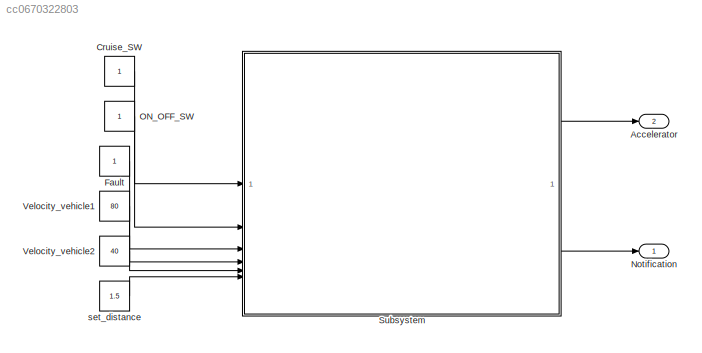
MODEL slx_cc0670322803
KIND model
CONFIG AbsTol = auto
CONFIG EnableMultiTasking = off
CONFIG FixedStep = auto
CONFIG MaxStep = auto
CONFIG MinStep = auto
CONFIG RelTol = 1e-3
CONFIG SampleTimeConstraint = Unconstrained
CONFIG SolverName = VariableStepAuto
CONFIG StartTime = 0.0
CONFIG StopTime = inf
BLOCK [Outport] Accelerator
  Port = 2
BLOCK [Constant] Cruise_SW
BLOCK [Constant] Fault
BLOCK [Outport] Notification
BLOCK [Constant] ON_OFF_SW
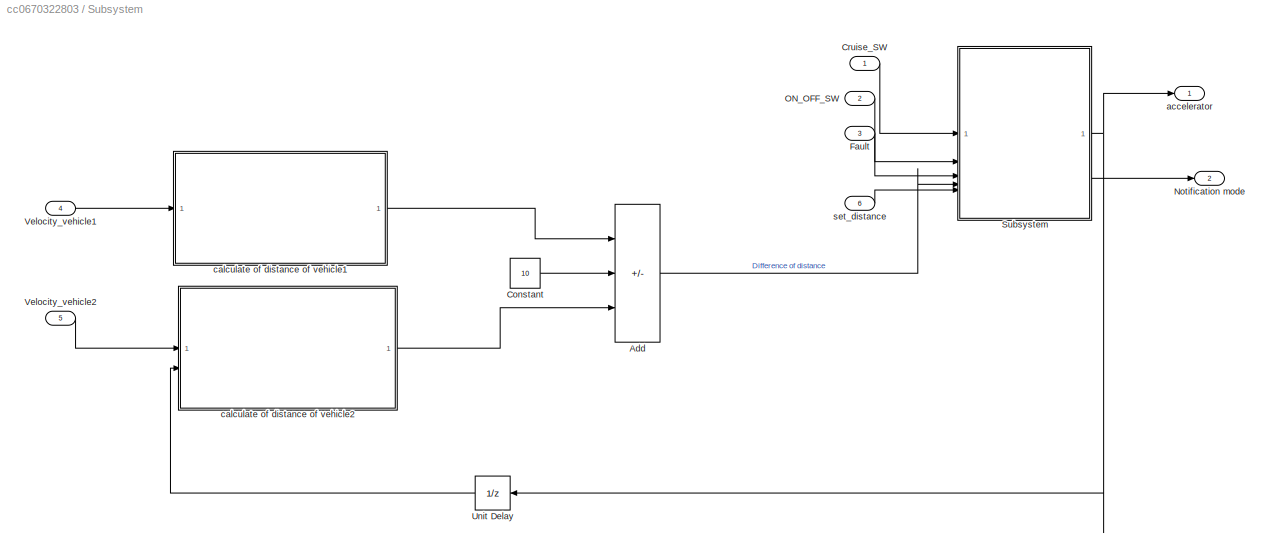
BLOCK [SubSystem] Subsystem
BLOCK [Sum] Subsystem/Add
  IconShape = rectangular
  Inputs = ++-
BLOCK [Constant] Subsystem/Constant
  Value = 10
BLOCK [Inport] Subsystem/Cruise_SW
BLOCK [Inport] Subsystem/Fault
  Port = 3
BLOCK [Outport] Subsystem/Notification mode
  Port = 2
BLOCK [Inport] Subsystem/ON_OFF_SW
  Port = 2
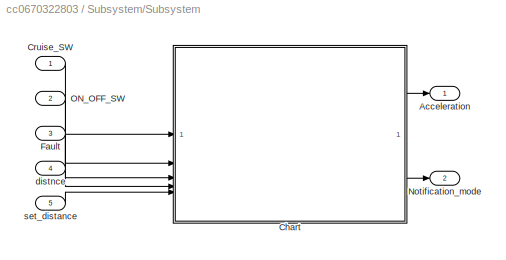
BLOCK [SubSystem] Subsystem/Subsystem
BLOCK [Outport] Subsystem/Subsystem/Acceleration
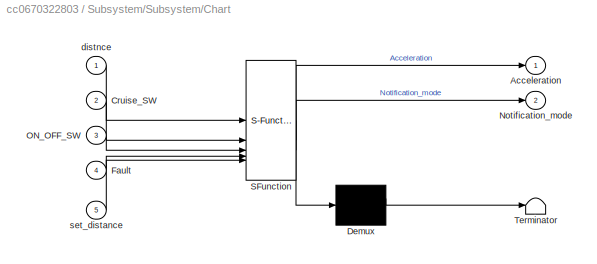
BLOCK [SubSystem] Subsystem/Subsystem/Chart
  ErrorFcn = Stateflow.Translate.translate
  PermitHierarchicalResolution = ExplicitOnly
  PortSchema = {"entries":[{"content":{"sides":[{"content":{"connectorIds":["In2","In3","In4","In1","In5"]},"type":"ConnectorPlacement.EquallySpacedRectSide","uuid":"4906a01a-7974-4c8e-ad8c-3bba2fae35ce"},{"content":{"connectorIds":["Out1","Out2"],"side":"RIGHT"},"type":"ConnectorPlacement.EquallySpacedRectSide","uuid":"298045ce-a80b-4d65-b495-fb259af7d9cc"},{"content":{"connectorIds":[],"side":"TOP"},"type":"Co...<+415ch>
  SFBlockType = Chart
  TreatAsAtomicUnit = on
BLOCK [Demux] Subsystem/Subsystem/Chart/ Demux 
  Outputs = 1
BLOCK [S-Function] Subsystem/Subsystem/Chart/ SFunction 
  EnableBusSupport = on
  FunctionName = sf_sfun
  PortCounts = [5 3]
  SFcnIsStateOwnerBlock = off
  SFunctionDeploymentMode = off
  Tag = Stateflow S-Function 3
BLOCK [Terminator] Subsystem/Subsystem/Chart/ Terminator 
BLOCK [Outport] Subsystem/Subsystem/Chart/Acceleration
BLOCK [Inport] Subsystem/Subsystem/Chart/Cruise_SW
  Port = 2
BLOCK [Inport] Subsystem/Subsystem/Chart/Fault
  Port = 4
BLOCK [Outport] Subsystem/Subsystem/Chart/Notification_mode
  Port = 2
BLOCK [Inport] Subsystem/Subsystem/Chart/ON_OFF_SW
  Port = 3
BLOCK [Inport] Subsystem/Subsystem/Chart/distnce
BLOCK [Inport] Subsystem/Subsystem/Chart/set_distance
  Port = 5
BLOCK [Inport] Subsystem/Subsystem/Cruise_SW
BLOCK [Inport] Subsystem/Subsystem/Fault
  Port = 3
BLOCK [Outport] Subsystem/Subsystem/Notification_mode
  Port = 2
BLOCK [Inport] Subsystem/Subsystem/ON_OFF_SW
  Port = 2
BLOCK [Inport] Subsystem/Subsystem/distnce
  Port = 4
BLOCK [Inport] Subsystem/Subsystem/set_distance
  Port = 5
BLOCK [UnitDelay] Subsystem/Unit Delay
  HasFrameUpgradeWarning = on
  InitialCondition = 1
  SampleTime = -1
BLOCK [Inport] Subsystem/Velocity_vehicle1
  Port = 4
BLOCK [Inport] Subsystem/Velocity_vehicle2
  Port = 5
BLOCK [Outport] Subsystem/accelerator
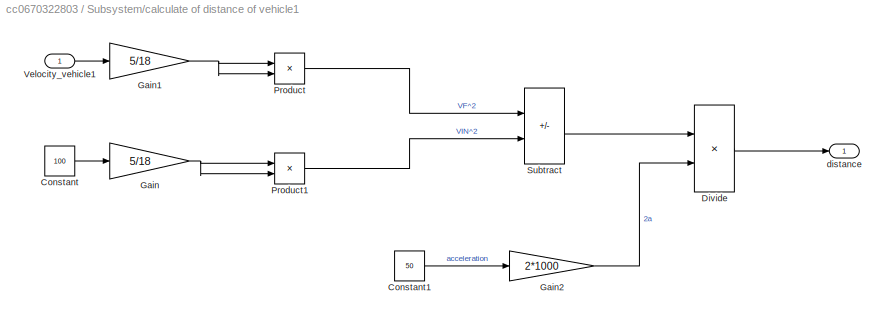
BLOCK [SubSystem] Subsystem/calculate of distance of vehicle1
BLOCK [Constant] Subsystem/calculate of distance of vehicle1/Constant
  Value = 100
BLOCK [Constant] Subsystem/calculate of distance of vehicle1/Constant1
  Value = 50
BLOCK [Product] Subsystem/calculate of distance of vehicle1/Divide
  Inputs = */
BLOCK [Gain] Subsystem/calculate of distance of vehicle1/Gain
  Gain = 5/18
BLOCK [Gain] Subsystem/calculate of distance of vehicle1/Gain1
  Gain = 5/18
BLOCK [Gain] Subsystem/calculate of distance of vehicle1/Gain2
  Gain = 2*1000
BLOCK [Product] Subsystem/calculate of distance of vehicle1/Product
BLOCK [Product] Subsystem/calculate of distance of vehicle1/Product1
BLOCK [Sum] Subsystem/calculate of distance of vehicle1/Subtract
  IconShape = rectangular
  Inputs = +-
BLOCK [Inport] Subsystem/calculate of distance of vehicle1/Velocity_vehicle1
BLOCK [Outport] Subsystem/calculate of distance of vehicle1/distance
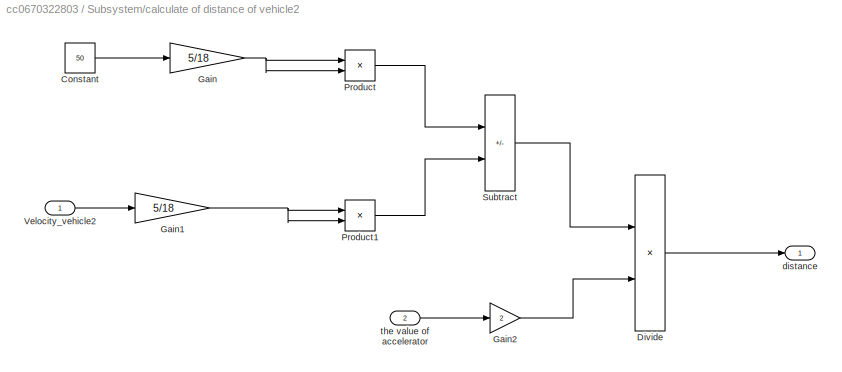
BLOCK [SubSystem] Subsystem/calculate of distance of vehicle2
BLOCK [Constant] Subsystem/calculate of distance of vehicle2/Constant
  Value = 50
BLOCK [Product] Subsystem/calculate of distance of vehicle2/Divide
  Inputs = */
BLOCK [Gain] Subsystem/calculate of distance of vehicle2/Gain
  Gain = 5/18
BLOCK [Gain] Subsystem/calculate of distance of vehicle2/Gain1
  Gain = 5/18
BLOCK [Gain] Subsystem/calculate of distance of vehicle2/Gain2
  Gain = 2
BLOCK [Product] Subsystem/calculate of distance of vehicle2/Product
BLOCK [Product] Subsystem/calculate of distance of vehicle2/Product1
BLOCK [Sum] Subsystem/calculate of distance of vehicle2/Subtract
  IconShape = rectangular
  Inputs = +-
BLOCK [Inport] Subsystem/calculate of distance of vehicle2/Velocity_vehicle2
BLOCK [Outport] Subsystem/calculate of distance of vehicle2/distance
BLOCK [Inport] Subsystem/calculate of distance of vehicle2/the value of accelerator
  Port = 2
BLOCK [Inport] Subsystem/set_distance
  Port = 6
BLOCK [Constant] Velocity_vehicle1
  Value = 80
BLOCK [Constant] Velocity_vehicle2
  Value = 40
BLOCK [Constant] set_distance
  Value = 1.5
LINE Cruise_SW:1 -> Subsystem:1
LINE Fault:1 -> Subsystem:3
LINE ON_OFF_SW:1 -> Subsystem:2
LINE Subsystem/Add:1 -> Subsystem/Subsystem:4
LINE Subsystem/Constant:1 -> Subsystem/Add:2
LINE Subsystem/Cruise_SW:1 -> Subsystem/Subsystem:1
LINE Subsystem/Fault:1 -> Subsystem/Subsystem:3
LINE Subsystem/ON_OFF_SW:1 -> Subsystem/Subsystem:2
LINE Subsystem/Subsystem/Chart:1 -> Subsystem/Subsystem/Acceleration:1
LINE Subsystem/Subsystem/Chart:2 -> Subsystem/Subsystem/Notification_mode:1
LINE Subsystem/Subsystem/Cruise_SW:1 -> Subsystem/Subsystem/Chart:2
LINE Subsystem/Subsystem/Fault:1 -> Subsystem/Subsystem/Chart:4
LINE Subsystem/Subsystem/ON_OFF_SW:1 -> Subsystem/Subsystem/Chart:3
LINE Subsystem/Subsystem/distnce:1 -> Subsystem/Subsystem/Chart:1
LINE Subsystem/Subsystem/set_distance:1 -> Subsystem/Subsystem/Chart:5
NET Subsystem/Subsystem:1 -> Subsystem/Unit Delay:1, Subsystem/accelerator:1
LINE Subsystem/Subsystem:2 -> Subsystem/Notification mode:1
LINE Subsystem/Unit Delay:1 -> Subsystem/calculate of distance of vehicle2:2
LINE Subsystem/Velocity_vehicle1:1 -> Subsystem/calculate of distance of vehicle1:1
LINE Subsystem/Velocity_vehicle2:1 -> Subsystem/calculate of distance of vehicle2:1
LINE Subsystem/calculate of distance of vehicle1/Constant1:1 -> Subsystem/calculate of distance of vehicle1/Gain2:1
LINE Subsystem/calculate of distance of vehicle1/Constant:1 -> Subsystem/calculate of distance of vehicle1/Gain:1
LINE Subsystem/calculate of distance of vehicle1/Divide:1 -> Subsystem/calculate of distance of vehicle1/distance:1
NET Subsystem/calculate of distance of vehicle1/Gain1:1 -> Subsystem/calculate of distance of vehicle1/Product:1, Subsystem/calculate of distance of vehicle1/Product:2
LINE Subsystem/calculate of distance of vehicle1/Gain2:1 -> Subsystem/calculate of distance of vehicle1/Divide:2
NET Subsystem/calculate of distance of vehicle1/Gain:1 -> Subsystem/calculate of distance of vehicle1/Product1:1, Subsystem/calculate of distance of vehicle1/Product1:2
LINE Subsystem/calculate of distance of vehicle1/Product1:1 -> Subsystem/calculate of distance of vehicle1/Subtract:2
LINE Subsystem/calculate of distance of vehicle1/Product:1 -> Subsystem/calculate of distance of vehicle1/Subtract:1
LINE Subsystem/calculate of distance of vehicle1/Subtract:1 -> Subsystem/calculate of distance of vehicle1/Divide:1
LINE Subsystem/calculate of distance of vehicle1/Velocity_vehicle1:1 -> Subsystem/calculate of distance of vehicle1/Gain1:1
LINE Subsystem/calculate of distance of vehicle1:1 -> Subsystem/Add:1
LINE Subsystem/calculate of distance of vehicle2/Constant:1 -> Subsystem/calculate of distance of vehicle2/Gain:1
LINE Subsystem/calculate of distance of vehicle2/Divide:1 -> Subsystem/calculate of distance of vehicle2/distance:1
NET Subsystem/calculate of distance of vehicle2/Gain1:1 -> Subsystem/calculate of distance of vehicle2/Product1:1, Subsystem/calculate of distance of vehicle2/Product1:2
LINE Subsystem/calculate of distance of vehicle2/Gain2:1 -> Subsystem/calculate of distance of vehicle2/Divide:2
NET Subsystem/calculate of distance of vehicle2/Gain:1 -> Subsystem/calculate of distance of vehicle2/Product:1, Subsystem/calculate of distance of vehicle2/Product:2
LINE Subsystem/calculate of distance of vehicle2/Product1:1 -> Subsystem/calculate of distance of vehicle2/Subtract:2
LINE Subsystem/calculate of distance of vehicle2/Product:1 -> Subsystem/calculate of distance of vehicle2/Subtract:1
LINE Subsystem/calculate of distance of vehicle2/Subtract:1 -> Subsystem/calculate of distance of vehicle2/Divide:1
LINE Subsystem/calculate of distance of vehicle2/Velocity_vehicle2:1 -> Subsystem/calculate of distance of vehicle2/Gain1:1
LINE Subsystem/calculate of distance of vehicle2/the value of accelerator:1 -> Subsystem/calculate of distance of vehicle2/Gain2:1
LINE Subsystem/calculate of distance of vehicle2:1 -> Subsystem/Add:3
LINE Subsystem/set_distance:1 -> Subsystem/Subsystem:5
LINE Subsystem:1 -> Accelerator:1
LINE Subsystem:2 -> Notification:1
LINE Velocity_vehicle1:1 -> Subsystem:4
LINE Velocity_vehicle2:1 -> Subsystem:5
LINE set_distance:1 -> Subsystem:6
note: NET lines group one-source signal fan-out (src -> all destinations, sorted); 1:1 wires keep LINE
CHART Subsystem/Subsystem/Chart states=6 transitions=34
  STATE_LABEL 'RegularSystem'
  STATE_LABEL 'cruise_on\n'
  STATE_LABEL '[distnce>15]'
  STATE_LABEL '{Notification_mode=System_mode.Accelerate; Acceleration = Acceleration +10;}'
  STATE_LABEL '[distnce < set_distance]'
  STATE_LABEL '{Notification_mode=System_mode.Stop;}'
  STATE_LABEL '[distnce<5]'
  STATE_LABEL '{Notification_mode=System_mode.brake; Acceleration = Acceleration -20;}'
  STATE_LABEL '[(distnce>5) && (distnce<10)]'
  STATE_LABEL '{Notification_mode=System_mode.Do_nothing; Acceleration = 1;}'
  STATE_LABEL '[distnce < 10]'
  STATE_LABEL '{Notification_mode=System_mode.Deaccelerate; Acceleration = Acceleration -10;}'
  STATE_LABEL 'cruise_off\n\n\n'
  STATE_LABEL '[Fault==1]'
  STATE_LABEL '{send(Local_fault_event,faultDetectionSystem);}'
  STATE_LABEL '{Notification_mode=System_mode.No_control_speed;}'
  STATE_LABEL '[ (ON_OFF_SW==0) || (Cruise_SW==0) ||(Fault==1) ]'
  STATE_LABEL '[ (ON_OFF_SW==1) && (Cruise_SW==1) &&(Fault==0) ]'
  STATE_LABEL 'cruise_on\n'
  STATE_LABEL '[distnce>15]'
  STATE_LABEL '{Notification_mode=System_mode.Accelerate; Acceleration = Acceleration +10;}'
  STATE_LABEL '[distnce < set_distance]'
  STATE_LABEL '{Notification_mode=System_mode.Stop;}'
  STATE_LABEL '[distnce<5]'
  STATE_LABEL '{Notification_mode=System_mode.brake; Acceleration = Acceleration -20;}'
  STATE_LABEL '[(distnce>5) && (distnce<10)]'
  STATE_LABEL '{Notification_mode=System_mode.Do_nothing; Acceleration = 1;}'
  STATE_LABEL '[distnce < 10]'
  STATE_LABEL '{Notification_mode=System_mode.Deaccelerate; Acceleration = Acceleration -10;}'
  STATE_LABEL 'cruise_off\n\n\n'
  STATE_LABEL '[Fault==1]'
  STATE_LABEL '{send(Local_fault_event,faultDetectionSystem);}'
  STATE_LABEL '{Notification_mode=System_mode.No_control_speed;}'
  STATE_LABEL 'faultDetectionSystem'
  STATE_LABEL 'FaultMode\nNotification_mode=System_mode.Fault'
  STATE_LABEL 'withoutFault\nen:'
  STATE_LABEL 'Local_fault_event'
  STATE_LABEL 'FaultMode\nNotification_mode=System_mode.Fault'
  STATE_LABEL 'withoutFault\nen:'
CHART  states=0 transitions=0
